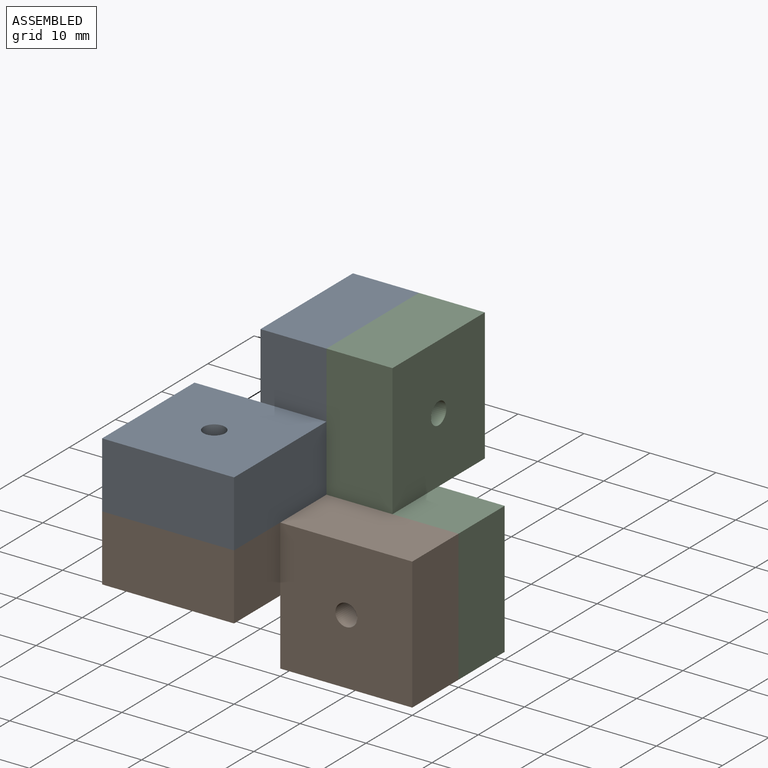
[diagram: assembled view]
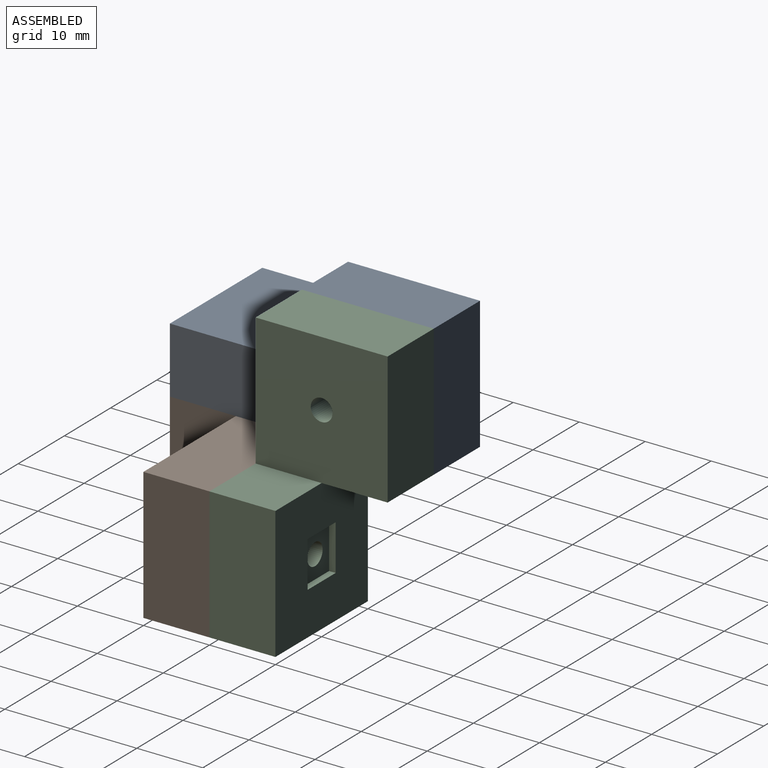
[diagram: assembled view, second angle]
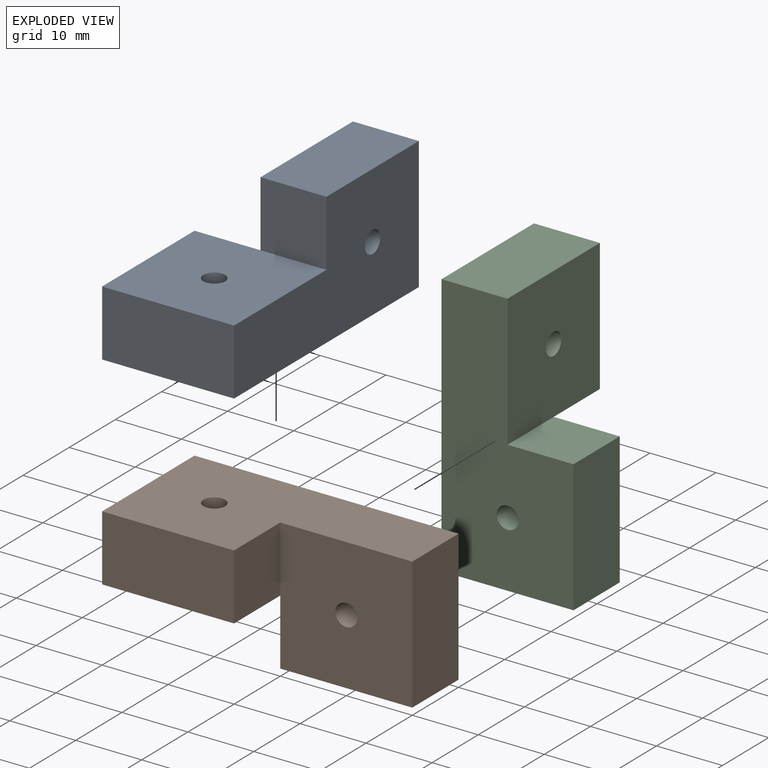
[diagram: exploded view]
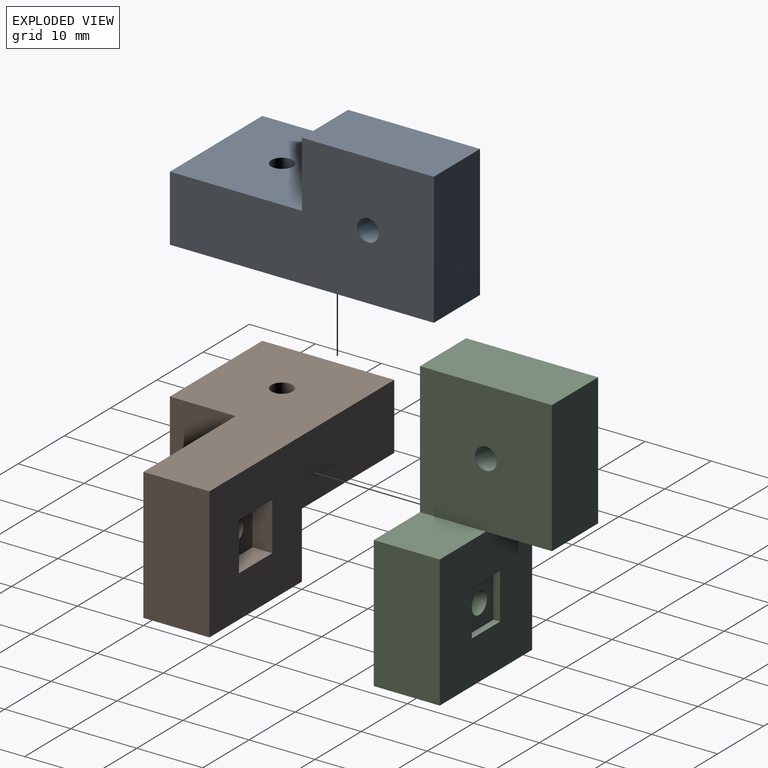
[diagram: exploded view, second angle]
ASSEMBLY  parts=3 mates=2
PART A: 22 faces, bbox 40x20x20 mm
  f0: plane 40x20mm, normal (0,0,-1), area 547.5mm2, adj f2,f4,f5,f6,f7,f10,f17,f18
  f1: cylinder r=1.65mm len=7mm, axis (0,0,1), area 72.6mm2, adj f8,f21
  f2: plane 20x20mm, normal (0,-1,0), area 357.8mm2, adj f0,f4,f9,f10,f11,f12,f13,f14
  f3: cylinder r=1.65mm len=9mm, axis (0,-1,0), area 93.3mm2, adj f5,f16
  f4: plane 10x10mm, normal (-1,0,0), area 100mm2, adj f0,f2,f6,f8
  f5: plane 40x20mm, normal (0,1,0), area 591.4mm2, adj f0,f3,f7,f8,f9,f10,f11
  f6: plane 20x10mm, normal (0,-1,0), area 200mm2, adj f0,f4,f7,f8
  f7: plane 20x10mm, normal (1,0,0), area 200mm2, adj f0,f5,f6,f8
  f8: plane 20x20mm, normal (0,0,1), area 391.4mm2, adj f1,f4,f5,f6,f7,f9
  f9: plane 10x10mm, normal (1,0,0), area 100mm2, adj f2,f5,f8,f11
  f10: plane 20x10mm, normal (-1,0,0), area 200mm2, adj f0,f2,f5,f11
  f11: plane 20x10mm, normal (0,0,1), area 200mm2, adj f2,f5,f9,f10
  f12: plane 6.95x1mm, normal (0,0,1), area 6.9mm2, adj f2,f13,f15,f16
  f13: plane 6.08x1mm, normal (-1,0,0), area 6.1mm2, adj f2,f12,f14,f16
  f14: plane 6.95x1mm, normal (0,0,-1), area 6.9mm2, adj f2,f13,f15,f16
  f15: plane 6.08x1mm, normal (1,0,0), area 6.1mm2, adj f2,f12,f14,f16
  f16: plane 6.95x6.08mm, normal (0,-1,0), area 33.7mm2, adj f3,f12,f13,f14,f15
  f17: plane 7.18x3mm, normal (0,-1,0), area 21.6mm2, adj f0,f18,f20,f21
  f18: plane 7.3x3mm, normal (-1,0,0), area 21.9mm2, adj f0,f17,f19,f21
  f19: plane 7.18x3mm, normal (0,1,0), area 21.6mm2, adj f0,f18,f20,f21
  f20: plane 7.3x3mm, normal (1,0,0), area 21.9mm2, adj f0,f17,f19,f21
  f21: plane 7.3x7.18mm, normal (0,0,-1), area 43.9mm2, adj f1,f17,f18,f19,f20
PART B: same geometry as A
PART C: same geometry as A
PLACE A rot(axis=(0,0,-1),90deg) t=(-40,10,20)mm
PLACE B rot(axis=(1,0,0),90deg) t=(-20,10,0)mm
PLACE C rot(axis=(-0.71,0,-0.71),180deg) t=(-20,30,20)mm
MATE fastened C.f5 <-> B.f0  axis (0,-1,0) through (0,10,20)mm
MATE fastened A.f0 <-> B.f5  axis (0,0,-1) through (-20,-10,20)mm
